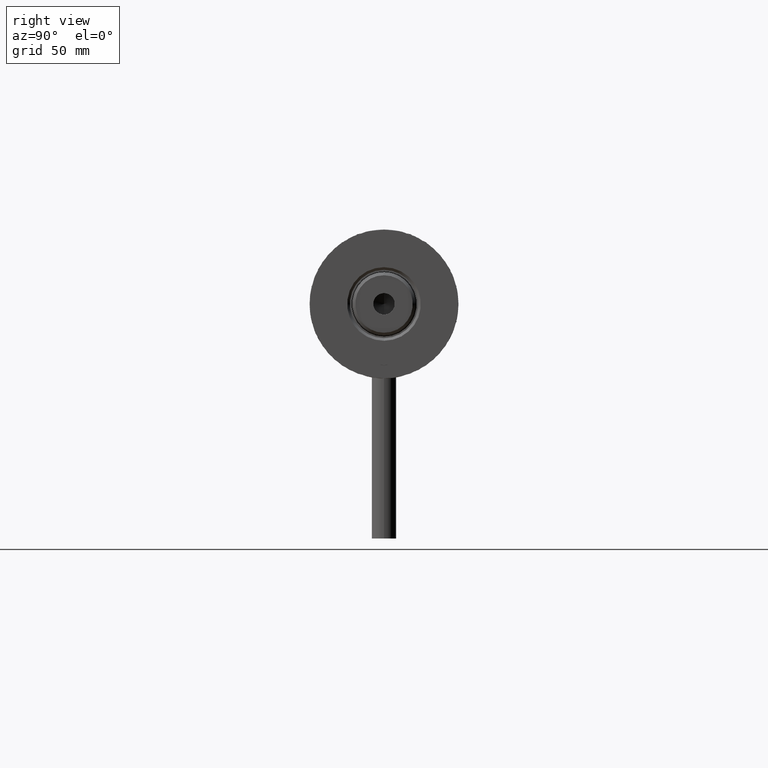
[diagram: clean part render]
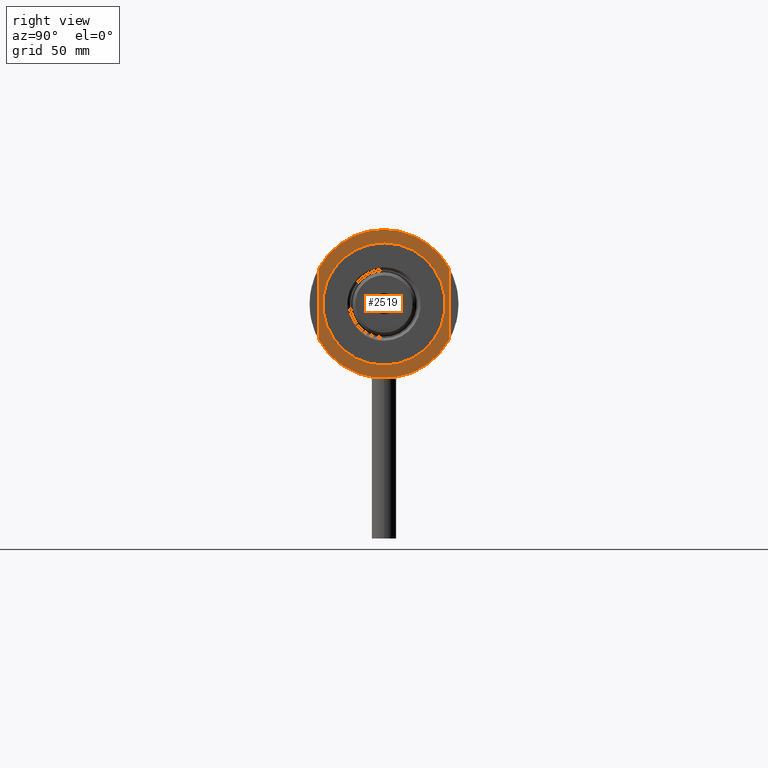
[diagram: same view with one face highlighted and labeled with its STEP entity id]
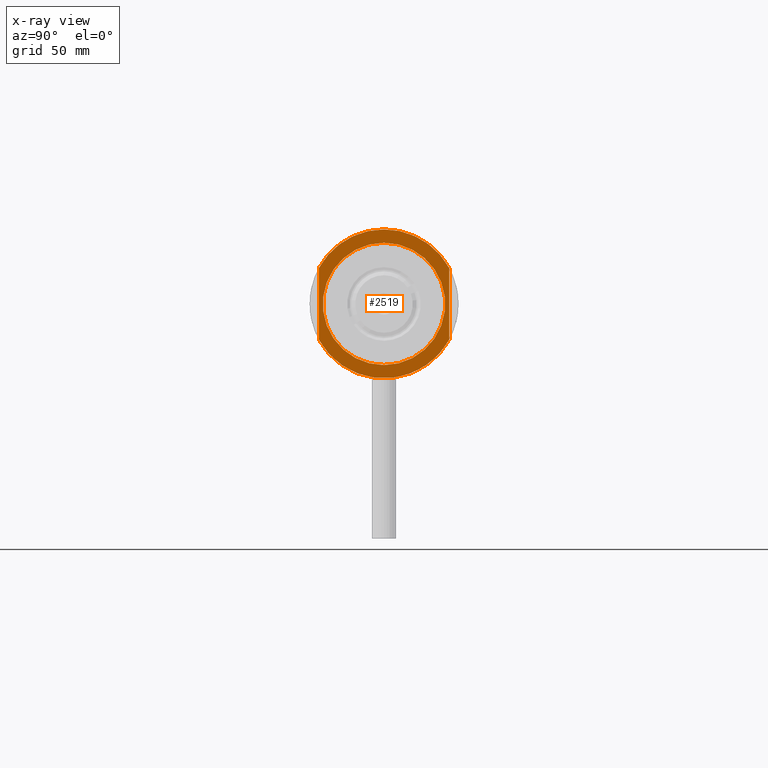
[diagram: x-ray of the same camera — body ghosted, the highlighted face saturated]
A machine part, right view. The second image highlights one B-rep face of the part: STEP entity #2519.
The next image is the same camera in x-ray: the body ghosted, the highlighted face saturated — about 0% of this face is hidden behind the body in this view.
In plain terms, the highlighted planar face has unit normal (1, 0, -0).
Its self-contained STEP definition (entity closure, byte-faithful):
#95 = CIRCLE ( 'NONE', #1248, 36.50000000000000000 ) ;
#206 = VECTOR ( 'NONE', #1903, 1000.000000000000000 ) ;
#295 = DIRECTION ( 'NONE',  ( 1.000000000000000000, 0.000000000000000000, 0.000000000000000000 ) ) ;
#366 = CARTESIAN_POINT ( 'NONE',  ( -36.50000000000000000, 0.000000000000000000, 15.50000000000000000 ) ) ;
#415 = ORIENTED_EDGE ( 'NONE', *, *, #721, .T. ) ;
#530 = ORIENTED_EDGE ( 'NONE', *, *, #627, .T. ) ;
#627 = EDGE_CURVE ( 'NONE', #3259, #4379, #95, .T. ) ;
#703 = EDGE_CURVE ( 'NONE', #2754, #2080, #4608, .T. ) ;
#707 = ORIENTED_EDGE ( 'NONE', *, *, #4536, .F. ) ;
#721 = EDGE_CURVE ( 'NONE', #2830, #3346, #4506, .T. ) ;
#767 = ORIENTED_EDGE ( 'NONE', *, *, #2629, .T. ) ;
#885 = EDGE_LOOP ( 'NONE', ( #1460, #415 ) ) ;
#935 = DIRECTION ( 'NONE',  ( 1.000000000000000000, 0.000000000000000000, 0.000000000000000000 ) ) ;
#1080 = DIRECTION ( 'NONE',  ( -0.000000000000000000, -0.000000000000000000, -1.000000000000000000 ) ) ;
#1166 = DIRECTION ( 'NONE',  ( 1.000000000000000000, 0.000000000000000000, -0.000000000000000000 ) ) ;
#1196 = FACE_BOUND ( 'NONE', #885, .T. ) ;
#1248 = AXIS2_PLACEMENT_3D ( 'NONE', #2055, #3465, #3887 ) ;
#1274 = EDGE_LOOP ( 'NONE', ( #707, #767, #1640, #4339, #530 ) ) ;
#1302 = EDGE_CURVE ( 'NONE', #2754, #3259, #3198, .T. ) ;
#1347 = AXIS2_PLACEMENT_3D ( 'NONE', #2927, #1080, #2945 ) ;
#1352 = CARTESIAN_POINT ( 'NONE',  ( 0.000000000000000000, 0.000000000000000000, 15.50000000000000000 ) ) ;
#1460 = ORIENTED_EDGE ( 'NONE', *, *, #2326, .T. ) ;
#1488 = CIRCLE ( 'NONE', #2581, 36.50000000000000000 ) ;
#1522 = FACE_OUTER_BOUND ( 'NONE', #1274, .T. ) ;
#1538 = CARTESIAN_POINT ( 'NONE',  ( -30.00000000000000355, 3.673940397442059178E-15, 15.50000000000000000 ) ) ;
#1640 = ORIENTED_EDGE ( 'NONE', *, *, #703, .F. ) ;
#1719 = DIRECTION ( 'NONE',  ( 1.000000000000000000, 0.000000000000000000, 0.000000000000000000 ) ) ;
#1903 = DIRECTION ( 'NONE',  ( -1.000000000000000000, -0.000000000000000000, -0.000000000000000000 ) ) ;
#1909 = VERTEX_POINT ( 'NONE', #2120 ) ;
#1948 = CARTESIAN_POINT ( 'NONE',  ( -17.55704986607943141, 32.00000000000000000, 15.50000000000000000 ) ) ;
#2055 = CARTESIAN_POINT ( 'NONE',  ( 0.000000000000000000, 0.000000000000000000, 15.50000000000000000 ) ) ;
#2080 = VERTEX_POINT ( 'NONE', #4496 ) ;
#2120 = CARTESIAN_POINT ( 'NONE',  ( 17.55704986607943496, -32.00000000000000000, 15.50000000000000000 ) ) ;
#2326 = EDGE_CURVE ( 'NONE', #3346, #2830, #3284, .T. ) ;
#2519 = ADVANCED_FACE ( 'NONE', ( #1196, #1522 ), #4465, .T. ) ;
#2542 = DIRECTION ( 'NONE',  ( 0.000000000000000000, 0.000000000000000000, 1.000000000000000000 ) ) ;
#2581 = AXIS2_PLACEMENT_3D ( 'NONE', #3232, #2542, #1719 ) ;
#2599 = DIRECTION ( 'NONE',  ( 0.000000000000000000, 0.000000000000000000, 1.000000000000000000 ) ) ;
#2629 = EDGE_CURVE ( 'NONE', #1909, #2080, #1488, .T. ) ;
#2636 = LINE ( 'NONE', #3388, #206 ) ;
#2732 = AXIS2_PLACEMENT_3D ( 'NONE', #2775, #4241, #935 ) ;
#2754 = VERTEX_POINT ( 'NONE', #4318 ) ;
#2775 = CARTESIAN_POINT ( 'NONE',  ( 0.000000000000000000, 0.000000000000000000, 15.50000000000000000 ) ) ;
#2830 = VERTEX_POINT ( 'NONE', #1538 ) ;
#2927 = CARTESIAN_POINT ( 'NONE',  ( 0.000000000000000000, 0.000000000000000000, 15.50000000000000000 ) ) ;
#2945 = DIRECTION ( 'NONE',  ( 1.000000000000000000, 0.000000000000000000, 0.000000000000000000 ) ) ;
#3057 = CARTESIAN_POINT ( 'NONE',  ( 0.000000000000000000, 0.000000000000000000, 15.50000000000000000 ) ) ;
#3130 = AXIS2_PLACEMENT_3D ( 'NONE', #3057, #2599, #1166 ) ;
#3198 = CIRCLE ( 'NONE', #3971, 36.50000000000000000 ) ;
#3232 = CARTESIAN_POINT ( 'NONE',  ( 0.000000000000000000, 0.000000000000000000, 15.50000000000000000 ) ) ;
#3259 = VERTEX_POINT ( 'NONE', #366 ) ;
#3263 = DIRECTION ( 'NONE',  ( 0.000000000000000000, 0.000000000000000000, 1.000000000000000000 ) ) ;
#3284 = CIRCLE ( 'NONE', #1347, 30.00000000000000355 ) ;
#3346 = VERTEX_POINT ( 'NONE', #3856 ) ;
#3388 = CARTESIAN_POINT ( 'NONE',  ( -17.55704986607943141, -32.00000000000000000, 15.50000000000000000 ) ) ;
#3442 = DIRECTION ( 'NONE',  ( 1.000000000000000000, 0.000000000000000000, 0.000000000000000000 ) ) ;
#3465 = DIRECTION ( 'NONE',  ( 0.000000000000000000, 0.000000000000000000, 1.000000000000000000 ) ) ;
#3581 = VECTOR ( 'NONE', #3442, 1000.000000000000000 ) ;
#3856 = CARTESIAN_POINT ( 'NONE',  ( 30.00000000000000355, 0.000000000000000000, 15.50000000000000000 ) ) ;
#3887 = DIRECTION ( 'NONE',  ( 1.000000000000000000, 0.000000000000000000, 0.000000000000000000 ) ) ;
#3971 = AXIS2_PLACEMENT_3D ( 'NONE', #1352, #3263, #295 ) ;
#4022 = CARTESIAN_POINT ( 'NONE',  ( -17.55704986607943496, -32.00000000000000000, 15.50000000000000000 ) ) ;
#4241 = DIRECTION ( 'NONE',  ( -0.000000000000000000, -0.000000000000000000, -1.000000000000000000 ) ) ;
#4318 = CARTESIAN_POINT ( 'NONE',  ( -17.55704986607943496, 32.00000000000000000, 15.50000000000000000 ) ) ;
#4339 = ORIENTED_EDGE ( 'NONE', *, *, #1302, .T. ) ;
#4379 = VERTEX_POINT ( 'NONE', #4022 ) ;
#4465 = PLANE ( 'NONE',  #3130 ) ;
#4496 = CARTESIAN_POINT ( 'NONE',  ( 17.55704986607943496, 32.00000000000000000, 15.50000000000000000 ) ) ;
#4506 = CIRCLE ( 'NONE', #2732, 30.00000000000000355 ) ;
#4536 = EDGE_CURVE ( 'NONE', #1909, #4379, #2636, .T. ) ;
#4608 = LINE ( 'NONE', #1948, #3581 ) ;